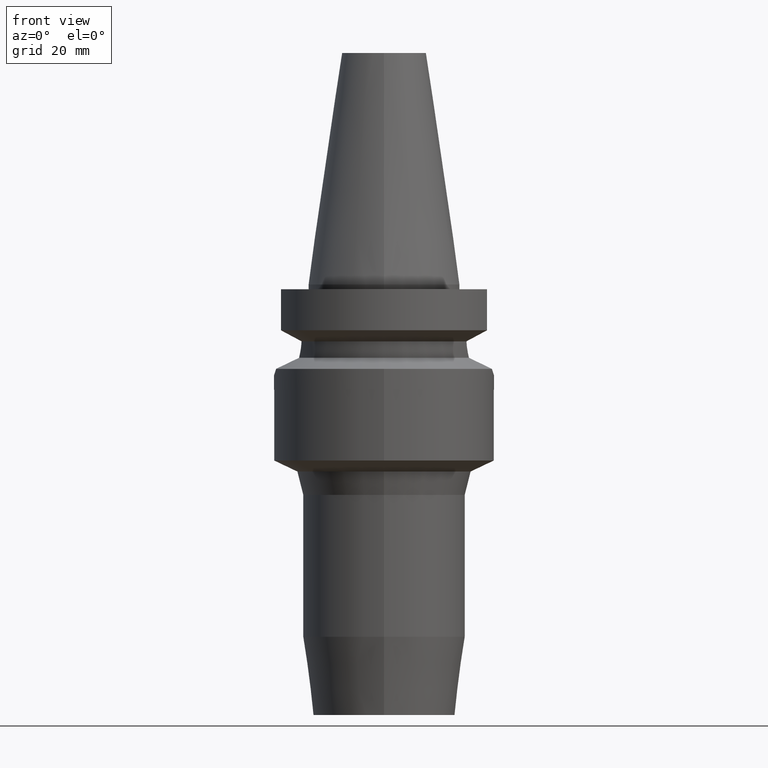
[diagram: clean part render]
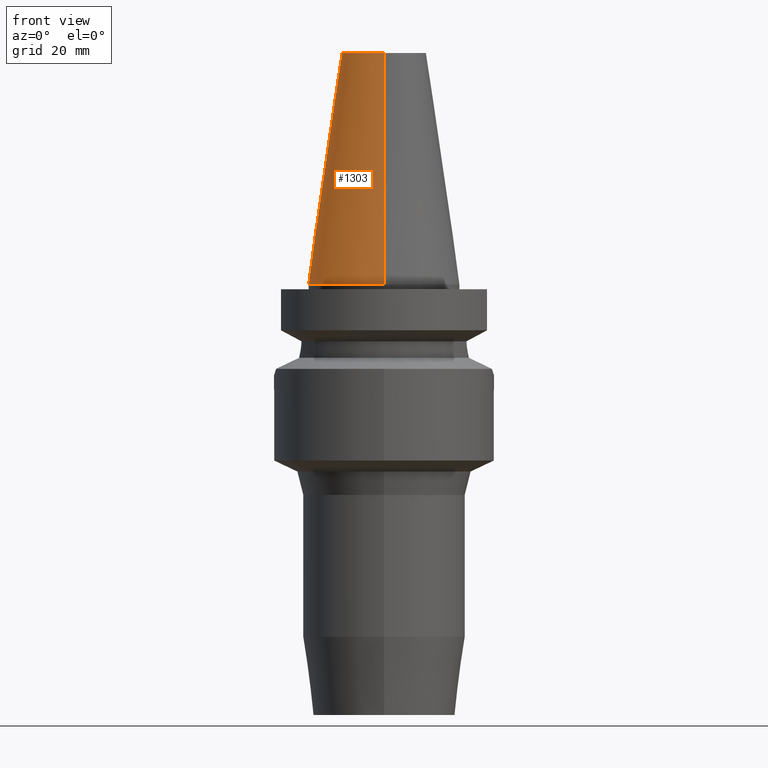
[diagram: same view with one face highlighted and labeled with its STEP entity id]
A machine part, front view. The second image highlights one B-rep face of the part: STEP entity #1303.
In plain terms, the highlighted conical surface has half-angle 8.297 deg.
Its self-contained STEP definition (entity closure, byte-faithful):
#17=DIRECTION('',(0.E0,1.443043893540E-1,-9.895333461856E-1));
#18=VECTOR('',#17,4.891194438931E1);
#19=CARTESIAN_POINT('',(0.E0,8.816791732783E0,4.84E1));
#20=LINE('',#19,#18);
#33=DIRECTION('',(0.E0,-1.443043893540E-1,-9.895333461856E-1));
#34=VECTOR('',#33,4.891194438931E1);
#35=CARTESIAN_POINT('',(0.E0,-8.816791732783E0,4.84E1));
#36=LINE('',#35,#34);
#40=CARTESIAN_POINT('',(0.E0,1.521011324541E-14,-3.694822225953E-13));
#41=DIRECTION('',(0.E0,0.E0,-1.E0));
#42=DIRECTION('',(0.E0,-1.E0,0.E0));
#43=AXIS2_PLACEMENT_3D('',#40,#41,#42);
#48=CARTESIAN_POINT('',(0.E0,1.521011324541E-14,4.84E1));
#49=DIRECTION('',(0.E0,0.E0,-1.E0));
#50=DIRECTION('',(0.E0,-1.E0,0.E0));
#51=AXIS2_PLACEMENT_3D('',#48,#49,#50);
#1110=CARTESIAN_POINT('',(0.E0,8.816791732783E0,4.84E1));
#1111=CARTESIAN_POINT('',(0.E0,1.5875E1,-1.776356839400E-13));
#1112=VERTEX_POINT('',#1110);
#1113=VERTEX_POINT('',#1111);
#1114=CARTESIAN_POINT('',(0.E0,-1.5875E1,-3.694822225953E-13));
#1115=VERTEX_POINT('',#1114);
#1116=CARTESIAN_POINT('',(0.E0,-8.816791732783E0,4.84E1));
#1117=VERTEX_POINT('',#1116);
#1290=CARTESIAN_POINT('',(0.E0,1.521011324541E-14,2.42E1));
#1291=DIRECTION('',(0.E0,0.E0,-1.E0));
#1292=DIRECTION('',(0.E0,-1.E0,0.E0));
#1293=AXIS2_PLACEMENT_3D('',#1290,#1291,#1292);
#1294=CONICAL_SURFACE('',#1293,1.234589586639E1,8.297E0);
#1295=ORIENTED_EDGE('',*,*,#1279,.F.);
#1297=ORIENTED_EDGE('',*,*,#1296,.F.);
#1298=ORIENTED_EDGE('',*,*,#1283,.T.);
#1300=ORIENTED_EDGE('',*,*,#1299,.T.);
#1301=EDGE_LOOP('',(#1295,#1297,#1298,#1300));
#1302=FACE_OUTER_BOUND('',#1301,.F.);
#44=CIRCLE('',#43,1.5875E1);
#52=CIRCLE('',#51,8.816791732783E0);
#1279=EDGE_CURVE('',#1112,#1113,#20,.T.);
#1283=EDGE_CURVE('',#1117,#1115,#36,.T.);
#1296=EDGE_CURVE('',#1117,#1112,#52,.T.);
#1299=EDGE_CURVE('',#1115,#1113,#44,.T.);
#1303=ADVANCED_FACE('',(#1302),#1294,.T.);